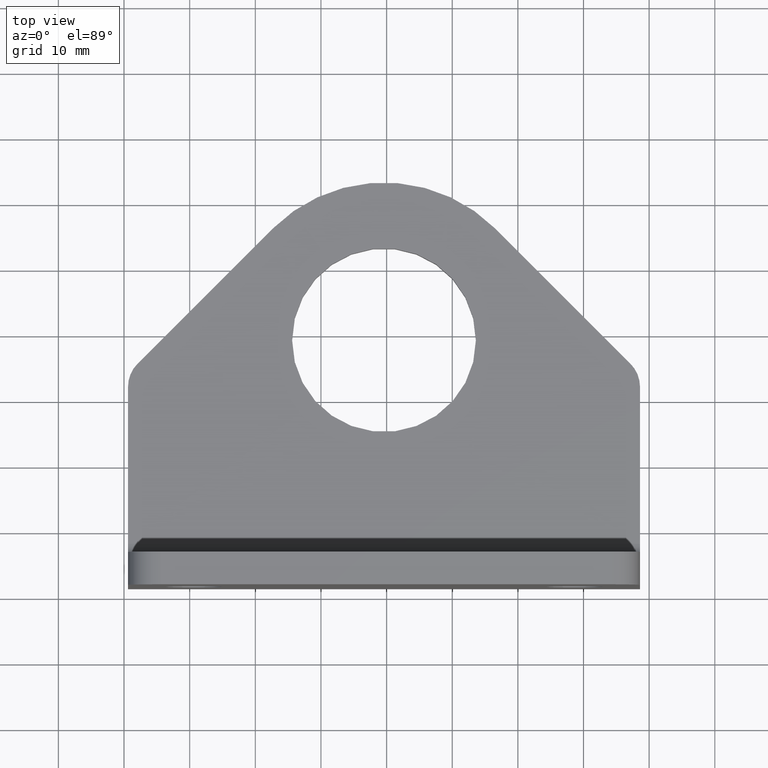
[diagram: clean part render]
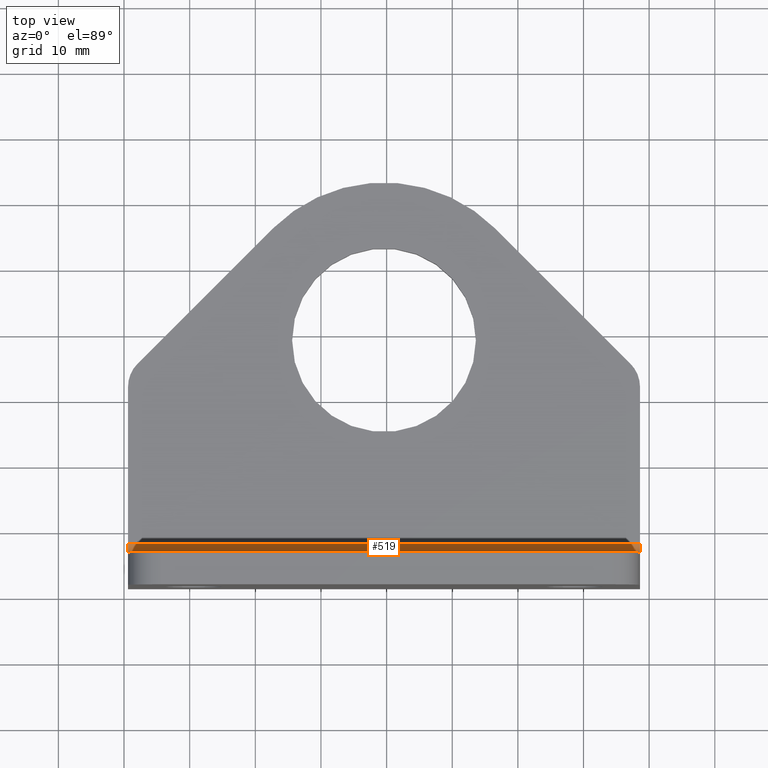
[diagram: same view with one face highlighted and labeled with its STEP entity id]
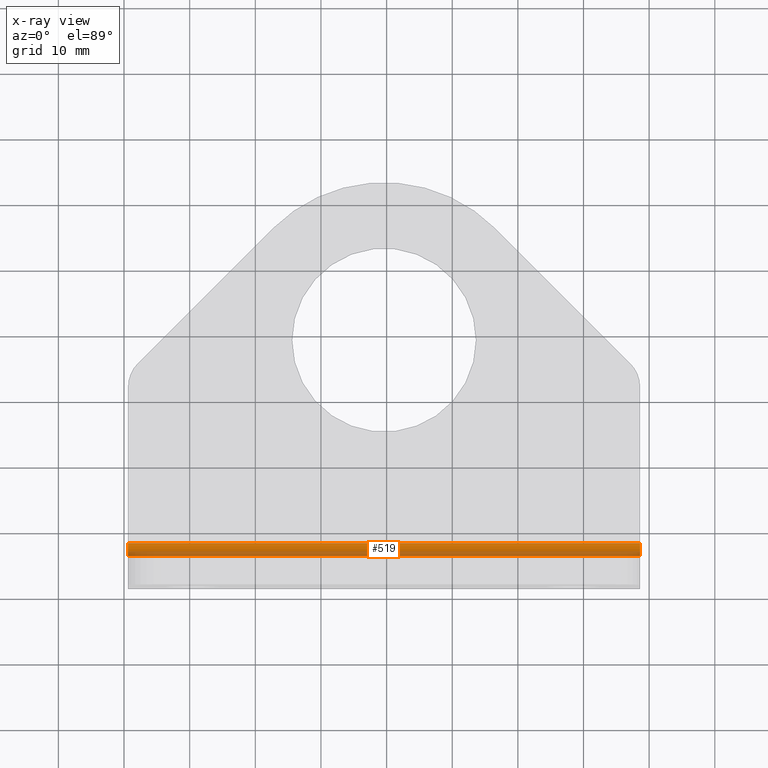
[diagram: x-ray of the same camera — body ghosted, the highlighted face saturated]
A machine part, top view. The second image highlights one B-rep face of the part: STEP entity #519.
The next image is the same camera in x-ray: the body ghosted, the highlighted face saturated — about 36% of this face is hidden behind the body in this view.
In plain terms, the highlighted cylindrical surface (edge-blend (fillet) strip) has radius 2 mm, axis along (-1, 0, 0).
Its self-contained STEP definition (entity closure, byte-faithful):
#56=FACE_OUTER_BOUND('',#89,.T.);
#89=EDGE_LOOP('',(#435,#436,#437,#438));
#124=LINE('',#831,#173);
#135=LINE('',#864,#184);
#173=VECTOR('',#672,10.);
#184=VECTOR('',#711,10.);
#214=CIRCLE('',#583,1.99999999999999);
#215=CIRCLE('',#585,1.99999999999999);
#246=VERTEX_POINT('',#828);
#247=VERTEX_POINT('',#830);
#254=VERTEX_POINT('',#855);
#255=VERTEX_POINT('',#859);
#302=EDGE_CURVE('',#246,#247,#124,.T.);
#315=EDGE_CURVE('',#247,#254,#214,.T.);
#318=EDGE_CURVE('',#246,#255,#215,.T.);
#319=EDGE_CURVE('',#254,#255,#135,.T.);
#435=ORIENTED_EDGE('',*,*,#302,.F.);
#436=ORIENTED_EDGE('',*,*,#318,.T.);
#437=ORIENTED_EDGE('',*,*,#319,.F.);
#438=ORIENTED_EDGE('',*,*,#315,.F.);
#496=CYLINDRICAL_SURFACE('',#587,2.);
#519=ADVANCED_FACE('',(#56),#496,.F.);
#583=AXIS2_PLACEMENT_3D('',#856,#699,#700);
#585=AXIS2_PLACEMENT_3D('',#861,#705,#706);
#587=AXIS2_PLACEMENT_3D('',#863,#709,#710);
#672=DIRECTION('',(-1.,4.25792305087083E-18,2.29514947909264E-32));
#699=DIRECTION('center_axis',(1.,0.,0.));
#700=DIRECTION('ref_axis',(0.,-1.,-5.5511151231258E-15));
#705=DIRECTION('center_axis',(1.,0.,0.));
#706=DIRECTION('ref_axis',(0.,-1.,-5.5511151231258E-15));
#709=DIRECTION('center_axis',(-1.,0.,0.));
#710=DIRECTION('ref_axis',(0.,0.,-1.));
#711=DIRECTION('',(1.,0.,0.));
#828=CARTESIAN_POINT('',(98.6042548020733,226.400291811824,7.00000000000003));
#830=CARTESIAN_POINT('',(20.6042546020733,226.400291811824,7.00000000000003));
#831=CARTESIAN_POINT('',(59.6042547020733,226.400291811824,6.99999999999999));
#855=CARTESIAN_POINT('',(20.6042546020733,228.400291811824,5.));
#856=CARTESIAN_POINT('Origin',(20.6042546020733,228.400291811824,7.));
#859=CARTESIAN_POINT('',(98.6042548020733,228.400291811824,5.));
#861=CARTESIAN_POINT('Origin',(98.6042548020733,228.400291811824,7.));
#863=CARTESIAN_POINT('Origin',(59.6042547020733,228.400291811824,7.));
#864=CARTESIAN_POINT('',(79.1042547520733,228.400291811824,5.));